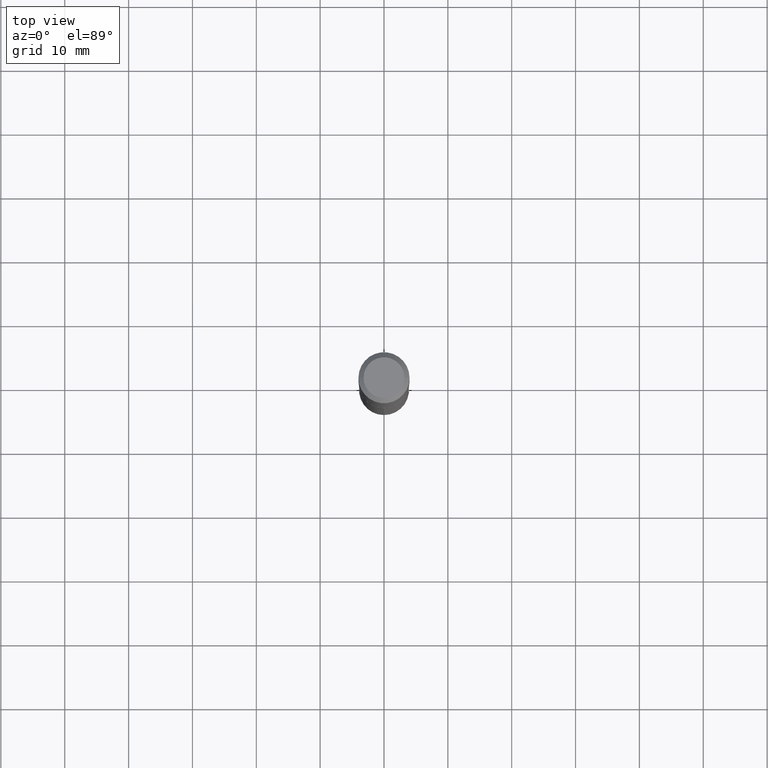
[diagram: clean part render]
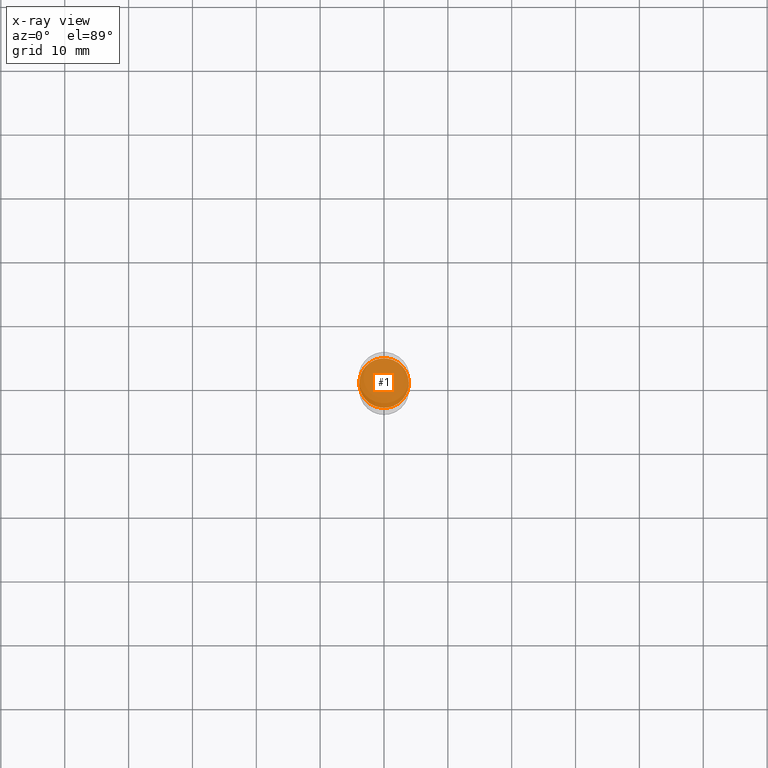
[diagram: x-ray — body ghosted, one internal face saturated and labeled with its STEP entity id]
A machine part, top view, then the same camera in x-ray: the body is ghosted and one INTERNAL B-rep face — a face not visible from any outside direction — is saturated and labeled: STEP entity #1.
In plain terms, the highlighted planar face has unit normal (-0, 0, 1).
Its self-contained STEP definition (entity closure, byte-faithful):
#1 = ADVANCED_FACE ( 'NONE', ( #355 ), #249, .F. ) ;
#2 = VERTEX_POINT ( 'NONE', #60 ) ;
#60 = CARTESIAN_POINT ( 'NONE',  ( -0.1530499999999999916, -5.782846131257786245E-15, -1.968499999999999694 ) ) ;
#87 = DIRECTION ( 'NONE',  ( 1.000000000000000000, -6.982962677686265922E-15, 4.876176775795935793E-29 ) ) ;
#99 = DIRECTION ( 'NONE',  ( -2.445468806185136597E-29, 3.491481338843145583E-15, 1.000000000000000000 ) ) ;
#102 = DIRECTION ( 'NONE',  ( 1.000000000000000000, -6.982962677686265922E-15, 0.000000000000000000 ) ) ;
#105 = VERTEX_POINT ( 'NONE', #279 ) ;
#115 = AXIS2_PLACEMENT_3D ( 'NONE', #171, #314, #87 ) ;
#150 = EDGE_LOOP ( 'NONE', ( #261, #449 ) ) ;
#171 = CARTESIAN_POINT ( 'NONE',  ( 2.360336001921411323E-29, -1.038663196326059026E-14, -1.968499999999999472 ) ) ;
#172 = CARTESIAN_POINT ( 'NONE',  ( 4.813905344975440714E-29, -6.872981015512730918E-15, -1.968499999999999694 ) ) ;
#173 = EDGE_CURVE ( 'NONE', #105, #2, #423, .T. ) ;
#219 = AXIS2_PLACEMENT_3D ( 'NONE', #331, #99, #254 ) ;
#228 = EDGE_CURVE ( 'NONE', #2, #105, #409, .T. ) ;
#235 = AXIS2_PLACEMENT_3D ( 'NONE', #172, #327, #102 ) ;
#249 = PLANE ( 'NONE',  #115 ) ;
#254 = DIRECTION ( 'NONE',  ( 1.000000000000000000, -6.982962677686265922E-15, 0.000000000000000000 ) ) ;
#261 = ORIENTED_EDGE ( 'NONE', *, *, #173, .F. ) ;
#279 = CARTESIAN_POINT ( 'NONE',  ( 0.1530499999999999916, -7.941723453332613269E-15, -1.968499999999999694 ) ) ;
#314 = DIRECTION ( 'NONE',  ( -2.438088387897960049E-29, 3.491481338843145188E-15, 1.000000000000000000 ) ) ;
#327 = DIRECTION ( 'NONE',  ( -2.445468806185136597E-29, 3.491481338843145583E-15, 1.000000000000000000 ) ) ;
#331 = CARTESIAN_POINT ( 'NONE',  ( 4.813905344975440714E-29, -6.872981015512730918E-15, -1.968499999999999694 ) ) ;
#355 = FACE_OUTER_BOUND ( 'NONE', #150, .T. ) ;
#409 = CIRCLE ( 'NONE', #219, 0.1530499999999999916 ) ;
#423 = CIRCLE ( 'NONE', #235, 0.1530499999999999916 ) ;
#449 = ORIENTED_EDGE ( 'NONE', *, *, #228, .F. ) ;